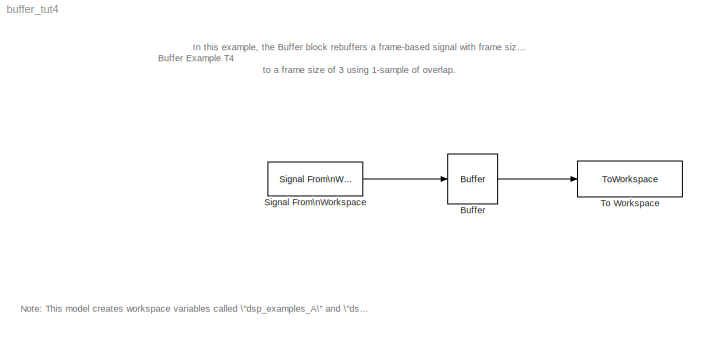
MODEL buffer_tut4
KIND model
CONFIG AbsTol = auto
CONFIG FixedStep = auto
CONFIG MaxStep = auto
CONFIG MinStep = auto
CONFIG PreLoadFcn = dsp_examples_A = [1 1;2 1;3 0;4 0;5 1;6 1;7 0;8 0];whos dsp_examples_*;
CONFIG RelTol = 1e-3
CONFIG Solver = FixedStepDiscrete
CONFIG SolverMode = Auto
CONFIG StartTime = 0.0
CONFIG StopTime = 10.0
BLOCK [Reference] Buffer  REF=dspbuff3/Buffer
  N = 3
  Ports = [1, 1]
  SourceBlock = dspbuff3/Buffer
  SourceType = Buffer
  V = 1
  ic = 0
BLOCK [Reference] Signal From\nWorkspace  REF=dspsrcs4/Signal From\nWorkspace
  OutputAfterFinalValue = Setting to zero
  Ports = [0, 1]
  SourceBlock = dspsrcs4/Signal From\nWorkspace
  SourceType = Signal From Workspace
  Ts = 1
  X = dsp_examples_A
  nsamps = 4
BLOCK [ToWorkspace] To Workspace
  MaxDataPoints = inf
  SampleTime = -1
  SaveFormat = Array
  VariableName = dsp_examples_yout
ANNOTATION (root): Buffer Example T4
ANNOTATION (root): In this example, the Buffer block rebuffers a frame-based signal with frame size 4 \nto a frame size of 3 using 1-sample of overlap.
ANNOTATION (root): Note: This model creates workspace variables called \"dsp_examples_A\" and \"dsp_examples_yout\".
LINE Buffer:1 -> To Workspace:1
LINE Signal From\nWorkspace:1 -> Buffer:1
